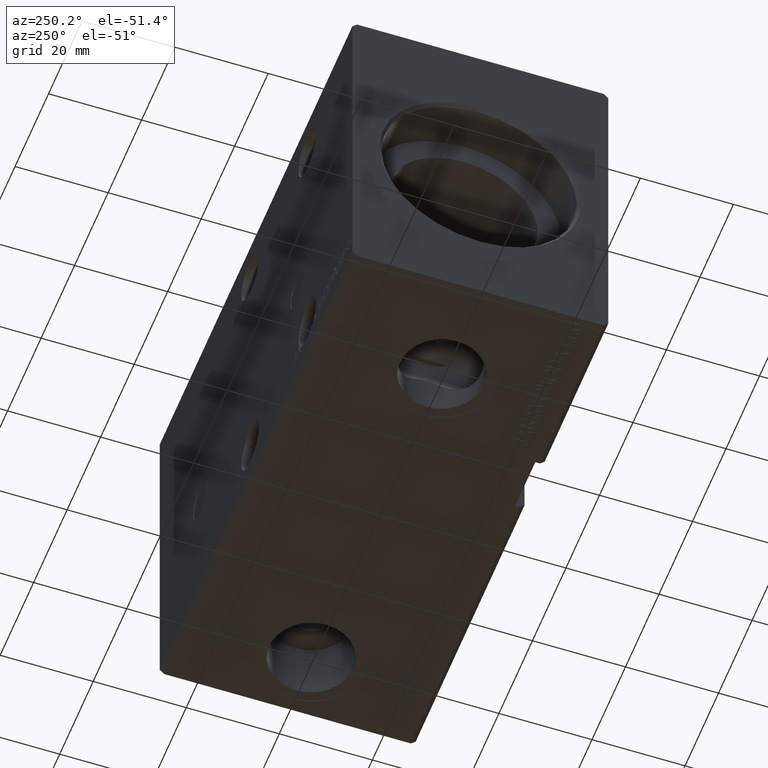
[diagram: clean part render]
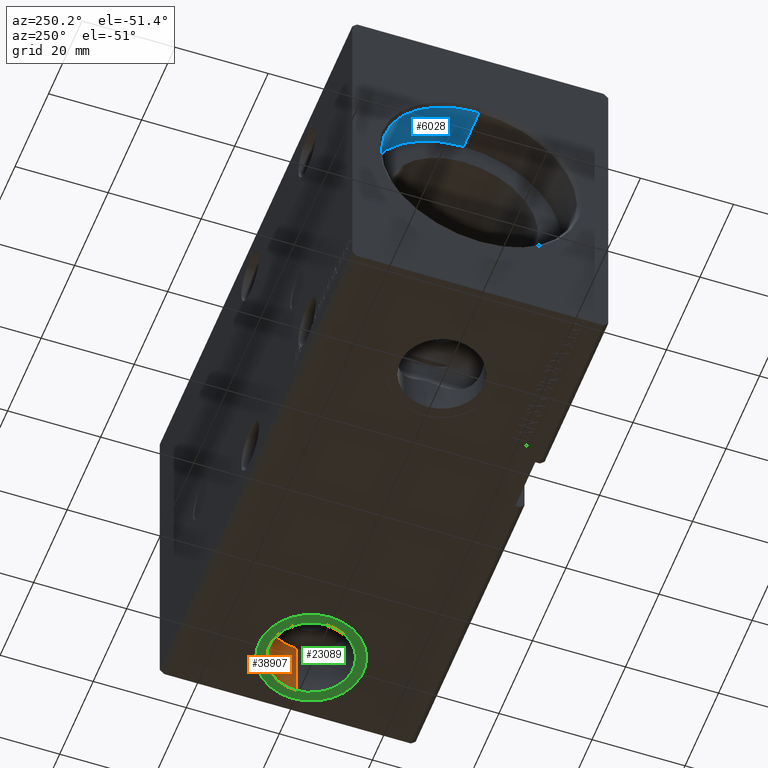
[diagram: same view with three faces highlighted in distinct colors, each labeled with its STEP entity id]
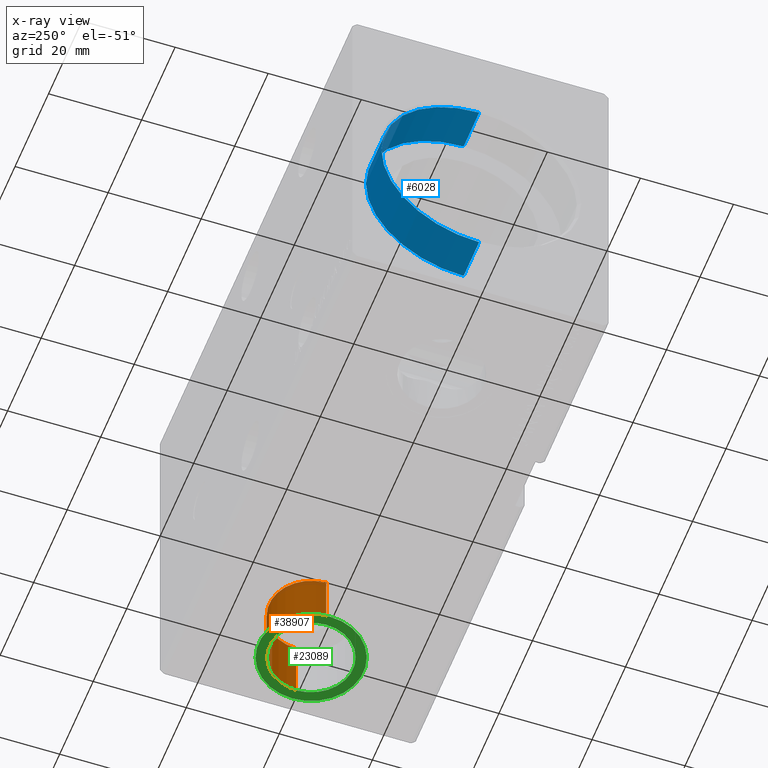
[diagram: x-ray of the same camera — body ghosted, the three highlighted faces saturated]
A machine part, auxiliary view with three faces highlighted in distinct colors.
The next image is the same camera in x-ray (body ghosted, the three faces saturated) — at least one of them is partly hidden behind the body in this view.
Their STEP definitions:

[orange] entity #38907 — the highlighted cylindrical surface (partial cylindrical patch) has radius 9 mm, axis along (-0, -0, -1).
#202 = VERTEX_POINT ( 'NONE', #37431 ) ;
#1392 = VERTEX_POINT ( 'NONE', #3862 ) ;
#1668 = VECTOR ( 'NONE', #23100, 1000.000000000000000 ) ;
#3862 = CARTESIAN_POINT ( 'NONE',  ( 110.0000000000000000, -1.314601451430084518E-14, -37.39999999999999147 ) ) ;
#5855 = CYLINDRICAL_SURFACE ( 'NONE', #38625, 8.999999999999994671 ) ;
#5985 = EDGE_LOOP ( 'NONE', ( #17699, #39344, #17987, #26569 ) ) ;
#6006 = DIRECTION ( 'NONE',  ( -0.000000000000000000, -0.000000000000000000, -1.000000000000000000 ) ) ;
#6338 = CARTESIAN_POINT ( 'NONE',  ( 101.0000000000000000, -1.424819663353346309E-14, -37.39999999999999147 ) ) ;
#8207 = DIRECTION ( 'NONE',  ( -1.000000000000000000, 0.000000000000000000, 0.000000000000000000 ) ) ;
#10621 = AXIS2_PLACEMENT_3D ( 'NONE', #16449, #28601, #36968 ) ;
#10993 = CARTESIAN_POINT ( 'NONE',  ( 110.0000000000000000, -1.314601451430084518E-14, -23.79999999999998650 ) ) ;
#11157 = VERTEX_POINT ( 'NONE', #12726 ) ;
#11455 = DIRECTION ( 'NONE',  ( -1.000000000000000000, 0.000000000000000000, 0.000000000000000000 ) ) ;
#12726 = CARTESIAN_POINT ( 'NONE',  ( 92.00000000000001421, -1.424819663353346309E-14, -23.79999999999998650 ) ) ;
#13803 = EDGE_CURVE ( 'NONE', #31316, #1392, #33305, .T. ) ;
#15036 = CARTESIAN_POINT ( 'NONE',  ( 101.0000000000000000, -1.424819663353346309E-14, -23.79999999999998650 ) ) ;
#16449 = CARTESIAN_POINT ( 'NONE',  ( 101.0000000000000000, -1.424819663353346309E-14, -23.79999999999998650 ) ) ;
#16499 = EDGE_CURVE ( 'NONE', #202, #1392, #35428, .T. ) ;
#17699 = ORIENTED_EDGE ( 'NONE', *, *, #13803, .F. ) ;
#17987 = ORIENTED_EDGE ( 'NONE', *, *, #36574, .T. ) ;
#19543 = AXIS2_PLACEMENT_3D ( 'NONE', #6338, #29709, #8207 ) ;
#19899 = LINE ( 'NONE', #35410, #1668 ) ;
#21584 = CARTESIAN_POINT ( 'NONE',  ( 110.0000000000000000, -1.314601451430084518E-14, -23.79999999999998650 ) ) ;
#23100 = DIRECTION ( 'NONE',  ( -0.000000000000000000, -0.000000000000000000, -1.000000000000000000 ) ) ;
#26569 = ORIENTED_EDGE ( 'NONE', *, *, #16499, .T. ) ;
#27817 = CIRCLE ( 'NONE', #10621, 8.999999999999994671 ) ;
#28547 = EDGE_CURVE ( 'NONE', #11157, #31316, #27817, .T. ) ;
#28601 = DIRECTION ( 'NONE',  ( 0.000000000000000000, 0.000000000000000000, -1.000000000000000000 ) ) ;
#29709 = DIRECTION ( 'NONE',  ( 0.000000000000000000, 0.000000000000000000, -1.000000000000000000 ) ) ;
#31316 = VERTEX_POINT ( 'NONE', #10993 ) ;
#33305 = LINE ( 'NONE', #21584, #37310 ) ;
#35410 = CARTESIAN_POINT ( 'NONE',  ( 92.00000000000001421, -1.424819663353346309E-14, -23.79999999999998650 ) ) ;
#35428 = CIRCLE ( 'NONE', #19543, 8.999999999999994671 ) ;
#35549 = FACE_OUTER_BOUND ( 'NONE', #5985, .T. ) ;
#36574 = EDGE_CURVE ( 'NONE', #11157, #202, #19899, .T. ) ;
#36968 = DIRECTION ( 'NONE',  ( -1.000000000000000000, 0.000000000000000000, 0.000000000000000000 ) ) ;
#37310 = VECTOR ( 'NONE', #6006, 1000.000000000000000 ) ;
#37431 = CARTESIAN_POINT ( 'NONE',  ( 92.00000000000001421, -1.424819663353346309E-14, -37.39999999999999147 ) ) ;
#38625 = AXIS2_PLACEMENT_3D ( 'NONE', #15036, #38741, #11455 ) ;
#38741 = DIRECTION ( 'NONE',  ( -0.000000000000000000, -0.000000000000000000, -1.000000000000000000 ) ) ;
#38907 = ADVANCED_FACE ( 'NONE', ( #35549 ), #5855, .F. ) ;
#39344 = ORIENTED_EDGE ( 'NONE', *, *, #28547, .F. ) ;

[blue] entity #6028 — the highlighted cylindrical surface (partial cylindrical patch) has radius 21 mm, axis along (-1, -0, -0).
#973 = VERTEX_POINT ( 'NONE', #18283 ) ;
#1169 = ORIENTED_EDGE ( 'NONE', *, *, #36901, .T. ) ;
#1312 = DIRECTION ( 'NONE',  ( -1.000000000000000000, 0.000000000000000000, 0.000000000000000000 ) ) ;
#4849 = VECTOR ( 'NONE', #35948, 1000.000000000000000 ) ;
#6028 = ADVANCED_FACE ( 'NONE', ( #28230 ), #12699, .F. ) ;
#7376 = ORIENTED_EDGE ( 'NONE', *, *, #35790, .T. ) ;
#8283 = CARTESIAN_POINT ( 'NONE',  ( 10.00000000000000000, 0.000000000000000000, 21.00000000000000000 ) ) ;
#8625 = DIRECTION ( 'NONE',  ( 0.000000000000000000, 0.000000000000000000, -1.000000000000000000 ) ) ;
#8853 = VERTEX_POINT ( 'NONE', #25183 ) ;
#11120 = VERTEX_POINT ( 'NONE', #11923 ) ;
#11782 = EDGE_CURVE ( 'NONE', #30662, #11120, #37696, .T. ) ;
#11923 = CARTESIAN_POINT ( 'NONE',  ( 0.7000000000000443645, 2.571758278209441661E-15, -21.00000000000000000 ) ) ;
#12699 = CYLINDRICAL_SURFACE ( 'NONE', #14202, 21.00000000000000000 ) ;
#13415 = CARTESIAN_POINT ( 'NONE',  ( 10.00000000000000000, 2.571758278209441661E-15, -21.00000000000000000 ) ) ;
#14202 = AXIS2_PLACEMENT_3D ( 'NONE', #31023, #25634, #25252 ) ;
#16379 = CIRCLE ( 'NONE', #24671, 21.00000000000000000 ) ;
#18283 = CARTESIAN_POINT ( 'NONE',  ( 10.00000000000000000, 0.000000000000000000, 21.00000000000000000 ) ) ;
#20185 = CIRCLE ( 'NONE', #30361, 21.00000000000000000 ) ;
#21755 = DIRECTION ( 'NONE',  ( -1.000000000000000000, 0.000000000000000000, 0.000000000000000000 ) ) ;
#21754 = CARTESIAN_POINT ( 'NONE',  ( 10.00000000000000000, 2.571758278209441661E-15, -21.00000000000000000 ) ) ;
#24671 = AXIS2_PLACEMENT_3D ( 'NONE', #25144, #21755, #37268 ) ;
#24789 = ORIENTED_EDGE ( 'NONE', *, *, #11782, .F. ) ;
#25144 = CARTESIAN_POINT ( 'NONE',  ( 10.00000000000000000, 0.000000000000000000, 0.000000000000000000 ) ) ;
#25183 = CARTESIAN_POINT ( 'NONE',  ( 0.7000000000000443645, 0.000000000000000000, 21.00000000000000000 ) ) ;
#25192 = VECTOR ( 'NONE', #37513, 1000.000000000000000 ) ;
#25252 = DIRECTION ( 'NONE',  ( 0.000000000000000000, 0.000000000000000000, 1.000000000000000000 ) ) ;
#25634 = DIRECTION ( 'NONE',  ( -1.000000000000000000, -0.000000000000000000, -0.000000000000000000 ) ) ;
#26491 = ORIENTED_EDGE ( 'NONE', *, *, #29065, .F. ) ;
#28230 = FACE_OUTER_BOUND ( 'NONE', #36500, .T. ) ;
#28639 = CARTESIAN_POINT ( 'NONE',  ( 0.7000000000000443645, 0.000000000000000000, 0.000000000000000000 ) ) ;
#29065 = EDGE_CURVE ( 'NONE', #973, #30662, #16379, .T. ) ;
#30361 = AXIS2_PLACEMENT_3D ( 'NONE', #28639, #1312, #8625 ) ;
#30662 = VERTEX_POINT ( 'NONE', #21754 ) ;
#31023 = CARTESIAN_POINT ( 'NONE',  ( 10.00000000000000000, 0.000000000000000000, 0.000000000000000000 ) ) ;
#35558 = LINE ( 'NONE', #8283, #4849 ) ;
#35790 = EDGE_CURVE ( 'NONE', #973, #8853, #35558, .T. ) ;
#35948 = DIRECTION ( 'NONE',  ( -1.000000000000000000, -0.000000000000000000, -0.000000000000000000 ) ) ;
#36500 = EDGE_LOOP ( 'NONE', ( #24789, #26491, #7376, #1169 ) ) ;
#36901 = EDGE_CURVE ( 'NONE', #8853, #11120, #20185, .T. ) ;
#37268 = DIRECTION ( 'NONE',  ( 0.000000000000000000, 0.000000000000000000, 1.000000000000000000 ) ) ;
#37513 = DIRECTION ( 'NONE',  ( -1.000000000000000000, -0.000000000000000000, -0.000000000000000000 ) ) ;
#37696 = LINE ( 'NONE', #13415, #25192 ) ;

[green] entity #23089 — the highlighted planar face has unit normal (0, 0, -1).
#202 = VERTEX_POINT ( 'NONE', #37431 ) ;
#1392 = VERTEX_POINT ( 'NONE', #3862 ) ;
#1754 = AXIS2_PLACEMENT_3D ( 'NONE', #10923, #19886, #32031 ) ;
#3639 = AXIS2_PLACEMENT_3D ( 'NONE', #26697, #30478, #8757 ) ;
#3862 = CARTESIAN_POINT ( 'NONE',  ( 110.0000000000000000, -1.314601451430084518E-14, -37.39999999999999147 ) ) ;
#5925 = EDGE_CURVE ( 'NONE', #1392, #202, #13596, .T. ) ;
#6338 = CARTESIAN_POINT ( 'NONE',  ( 101.0000000000000000, -1.424819663353346309E-14, -37.39999999999999147 ) ) ;
#6912 = CIRCLE ( 'NONE', #15178, 11.24999999999999645 ) ;
#8207 = DIRECTION ( 'NONE',  ( -1.000000000000000000, 0.000000000000000000, 0.000000000000000000 ) ) ;
#8757 = DIRECTION ( 'NONE',  ( -1.000000000000000000, 0.000000000000000000, -0.000000000000000000 ) ) ;
#8906 = CARTESIAN_POINT ( 'NONE',  ( 101.0000000000000000, -1.424819663353346309E-14, -37.39999999999999147 ) ) ;
#10231 = DIRECTION ( 'NONE',  ( -1.000000000000000000, 0.000000000000000000, 0.000000000000000000 ) ) ;
#10242 = ORIENTED_EDGE ( 'NONE', *, *, #25582, .T. ) ;
#10923 = CARTESIAN_POINT ( 'NONE',  ( 101.0000000000000000, -1.424819663353346309E-14, -37.39999999999999147 ) ) ;
#11842 = EDGE_LOOP ( 'NONE', ( #23482, #27051 ) ) ;
#13596 = CIRCLE ( 'NONE', #35826, 8.999999999999994671 ) ;
#14537 = FACE_BOUND ( 'NONE', #11842, .T. ) ;
#14901 = VERTEX_POINT ( 'NONE', #27461 ) ;
#15178 = AXIS2_PLACEMENT_3D ( 'NONE', #15624, #24601, #10231 ) ;
#15624 = CARTESIAN_POINT ( 'NONE',  ( 101.0000000000000000, -1.424819663353346309E-14, -37.39999999999999147 ) ) ;
#16499 = EDGE_CURVE ( 'NONE', #202, #1392, #35428, .T. ) ;
#18080 = DIRECTION ( 'NONE',  ( -1.000000000000000000, 0.000000000000000000, 0.000000000000000000 ) ) ;
#18240 = VERTEX_POINT ( 'NONE', #19131 ) ;
#19131 = CARTESIAN_POINT ( 'NONE',  ( 89.75000000000001421, -1.424819663353346309E-14, -37.39999999999999147 ) ) ;
#19543 = AXIS2_PLACEMENT_3D ( 'NONE', #6338, #29709, #8207 ) ;
#19886 = DIRECTION ( 'NONE',  ( 0.000000000000000000, 0.000000000000000000, -1.000000000000000000 ) ) ;
#23089 = ADVANCED_FACE ( 'NONE', ( #14537, #36035 ), #33249, .T. ) ;
#23482 = ORIENTED_EDGE ( 'NONE', *, *, #16499, .F. ) ;
#24364 = EDGE_CURVE ( 'NONE', #14901, #18240, #35458, .T. ) ;
#24601 = DIRECTION ( 'NONE',  ( 0.000000000000000000, 0.000000000000000000, -1.000000000000000000 ) ) ;
#25582 = EDGE_CURVE ( 'NONE', #18240, #14901, #6912, .T. ) ;
#26697 = CARTESIAN_POINT ( 'NONE',  ( 101.0000000000000000, -1.424819663353346309E-14, -37.39999999999999147 ) ) ;
#27051 = ORIENTED_EDGE ( 'NONE', *, *, #5925, .F. ) ;
#27461 = CARTESIAN_POINT ( 'NONE',  ( 112.2500000000000000, -1.287046898449269110E-14, -37.39999999999999147 ) ) ;
#29709 = DIRECTION ( 'NONE',  ( 0.000000000000000000, 0.000000000000000000, -1.000000000000000000 ) ) ;
#30478 = DIRECTION ( 'NONE',  ( 0.000000000000000000, 0.000000000000000000, -1.000000000000000000 ) ) ;
#30776 = ORIENTED_EDGE ( 'NONE', *, *, #24364, .T. ) ;
#32031 = DIRECTION ( 'NONE',  ( -1.000000000000000000, 0.000000000000000000, 0.000000000000000000 ) ) ;
#33202 = DIRECTION ( 'NONE',  ( 0.000000000000000000, 0.000000000000000000, -1.000000000000000000 ) ) ;
#33249 = PLANE ( 'NONE',  #3639 ) ;
#33447 = EDGE_LOOP ( 'NONE', ( #10242, #30776 ) ) ;
#35428 = CIRCLE ( 'NONE', #19543, 8.999999999999994671 ) ;
#35458 = CIRCLE ( 'NONE', #1754, 11.24999999999999645 ) ;
#35826 = AXIS2_PLACEMENT_3D ( 'NONE', #8906, #33202, #18080 ) ;
#36035 = FACE_OUTER_BOUND ( 'NONE', #33447, .T. ) ;
#37431 = CARTESIAN_POINT ( 'NONE',  ( 92.00000000000001421, -1.424819663353346309E-14, -37.39999999999999147 ) ) ;